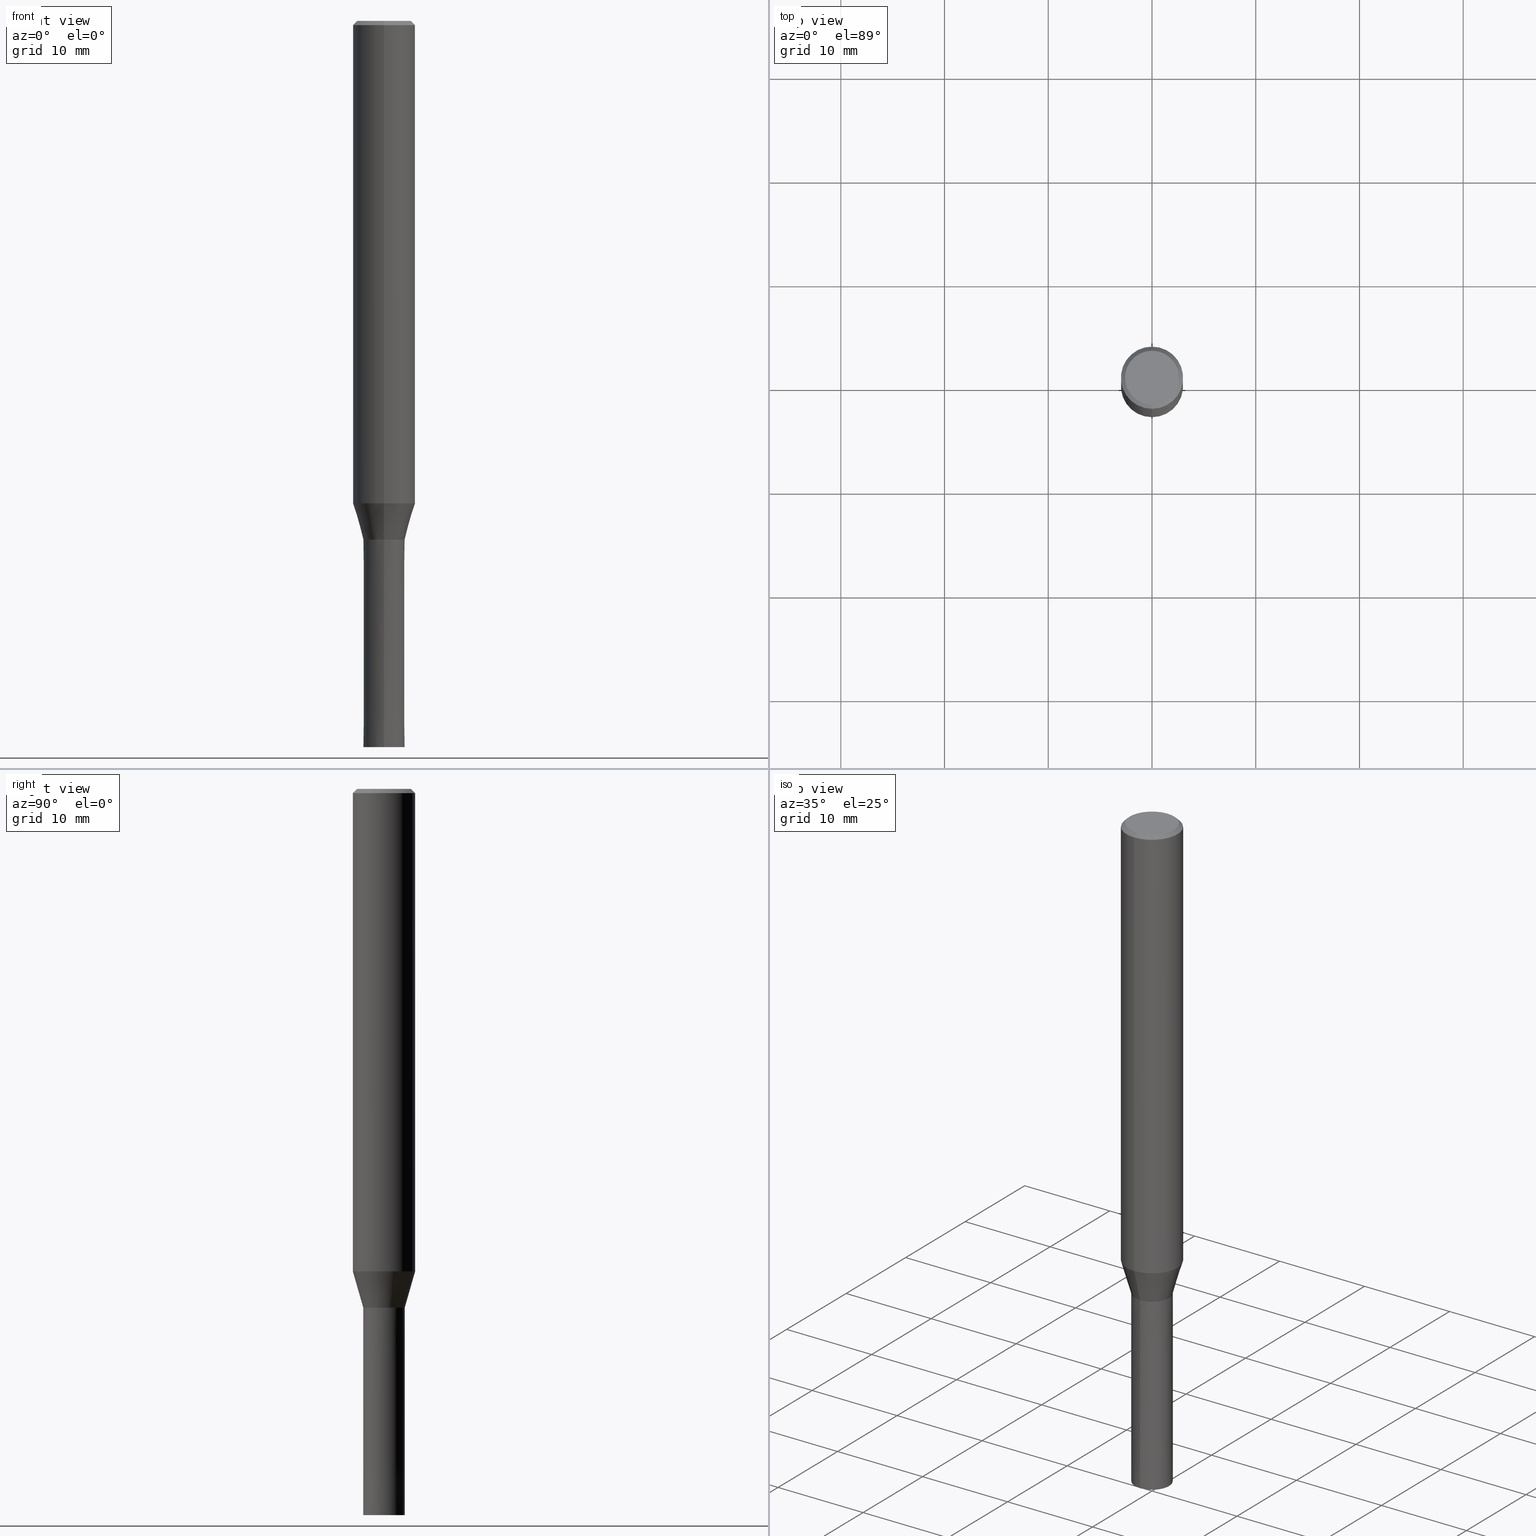
[diagram: canonical four-view strip — front | top / right | iso, engineering-drawing reading convention]
A machine part, canonical four-view strip (front | top / right | iso — engineering-drawing reading convention). The complete STEP part file that produces these views, byte-faithful:
ISO-10303-21;
HEADER;
FILE_DESCRIPTION(('no description'),'unknown implementation level');
FILE_NAME('HMS4040-2000-Huellk.stp','  ',('CIMSOURCE GmbH'),('CADClick - KiM GmbH - www.kimweb.de'),'unknown preprocess','ACIS','unknown authorization');
FILE_SCHEMA(('automotive_design'));
ENDSEC;
DATA;
#1=MECHANICAL_DESIGN_GEOMETRIC_PRESENTATION_REPRESENTATION(' ',(#14,#15,#16,#17,#18,#19,#20,#21,#22,#23,#24,#25,#26,#27,#28,#29,#30,#31,#32,#33,#34,#35,#36,#37,#38,#39,#40,#41,#42,#43,#44,#45,#46,#47,#48,#49,#50,#51,#52,#53,#54,#55,#56,#57,#58,#59,#60,#61,#62,#63,#64),#10);
#2=PRODUCT_DEFINITION_CONTEXT('',#65,'design');
#3=APPLICATION_PROTOCOL_DEFINITION('INTERNATIONAL STANDARD','automotive_design',1994,#65);
#4=PRODUCT_CATEGORY_RELATIONSHIP('NONE','NONE',#66,#67);
#5=SHAPE_DEFINITION_REPRESENTATION(#68,#69);
#6=PRODUCT_DEFINITION_CONTEXT('',#70,'design');
#7=APPLICATION_PROTOCOL_DEFINITION('INTERNATIONAL STANDARD','automotive_design',1994,#70);
#8=PRODUCT_CATEGORY_RELATIONSHIP('NONE','NONE',#71,#72);
#9=SHAPE_DEFINITION_REPRESENTATION(#73,#74);
#10= (GEOMETRIC_REPRESENTATION_CONTEXT(3)GLOBAL_UNCERTAINTY_ASSIGNED_CONTEXT((#77))GLOBAL_UNIT_ASSIGNED_CONTEXT((#79,#80,#81))REPRESENTATION_CONTEXT('NONE','WORKSPACE'));
#14=STYLED_ITEM('',(#83),#84);
#15=STYLED_ITEM('',(#85),#86);
#16=STYLED_ITEM('',(#87),#88);
#17=STYLED_ITEM('',(#89),#90);
#18=STYLED_ITEM('',(#91),#92);
#19=STYLED_ITEM('',(#93),#94);
#20=STYLED_ITEM('',(#95),#96);
#21=STYLED_ITEM('',(#97),#98);
#22=STYLED_ITEM('',(#99),#100);
#23=STYLED_ITEM('',(#101),#102);
#24=STYLED_ITEM('',(#103),#104);
#25=STYLED_ITEM('',(#105),#106);
#26=STYLED_ITEM('',(#107),#108);
#27=STYLED_ITEM('',(#109),#110);
#28=STYLED_ITEM('',(#111),#112);
#29=STYLED_ITEM('',(#113),#114);
#30=STYLED_ITEM('',(#115),#116);
#31=STYLED_ITEM('',(#117),#118);
#32=STYLED_ITEM('',(#119),#120);
#33=STYLED_ITEM('',(#121),#122);
#34=STYLED_ITEM('',(#123),#124);
#35=STYLED_ITEM('',(#125),#126);
#36=STYLED_ITEM('',(#127),#128);
#37=STYLED_ITEM('',(#129),#130);
#38=STYLED_ITEM('',(#131),#132);
#39=STYLED_ITEM('',(#133),#134);
#40=STYLED_ITEM('',(#135),#136);
#41=STYLED_ITEM('',(#137),#138);
#42=STYLED_ITEM('',(#139),#140);
#43=STYLED_ITEM('',(#141),#142);
#44=STYLED_ITEM('',(#143),#144);
#45=STYLED_ITEM('',(#145),#146);
#46=STYLED_ITEM('',(#147),#148);
#47=STYLED_ITEM('',(#149),#150);
#48=STYLED_ITEM('',(#151),#152);
#49=STYLED_ITEM('',(#153),#154);
#50=STYLED_ITEM('',(#155),#156);
#51=STYLED_ITEM('',(#157),#158);
#52=STYLED_ITEM('',(#159),#160);
#53=STYLED_ITEM('',(#161),#162);
#54=STYLED_ITEM('',(#163),#164);
#55=STYLED_ITEM('',(#165),#166);
#56=STYLED_ITEM('',(#167),#168);
#57=STYLED_ITEM('',(#169),#170);
#58=STYLED_ITEM('',(#171),#172);
#59=STYLED_ITEM('',(#173),#174);
#60=STYLED_ITEM('',(#175),#176);
#61=STYLED_ITEM('',(#177),#178);
#62=STYLED_ITEM('',(#179),#180);
#63=STYLED_ITEM('',(#181),#182);
#64=STYLED_ITEM('',(#183),#184);
#65=APPLICATION_CONTEXT(' ');
#66=PRODUCT_CATEGORY('part','NONE');
#67=PRODUCT_RELATED_PRODUCT_CATEGORY('detail',' ',(#185));
#68=PRODUCT_DEFINITION_SHAPE('NONE','NONE',#186);
#69=ADVANCED_BREP_SHAPE_REPRESENTATION('1',(#156,#187),#10);
#70=APPLICATION_CONTEXT(' ');
#71=PRODUCT_CATEGORY('part','NONE');
#72=PRODUCT_RELATED_PRODUCT_CATEGORY('detail',' ',(#188));
#73=PRODUCT_DEFINITION_SHAPE('NONE','NONE',#189);
#74=ADVANCED_BREP_SHAPE_REPRESENTATION('2',(#172,#190),#10);
#77=UNCERTAINTY_MEASURE_WITH_UNIT(LENGTH_MEASURE(1.0E-006),#79,'','');
#79= (CONVERSION_BASED_UNIT('MILLIMETRE',#193)LENGTH_UNIT()NAMED_UNIT(#196));
#80= (NAMED_UNIT(#198)PLANE_ANGLE_UNIT()SI_UNIT($,.RADIAN.));
#81= (NAMED_UNIT(#198)SOLID_ANGLE_UNIT()SI_UNIT($,.STERADIAN.));
#83=PRESENTATION_STYLE_ASSIGNMENT((#204));
#84=ADVANCED_FACE('',(#205),#206,.T.);
#85=PRESENTATION_STYLE_ASSIGNMENT((#207));
#86=ADVANCED_FACE('',(#208),#209,.T.);
#87=PRESENTATION_STYLE_ASSIGNMENT((#210));
#88=EDGE_CURVE('',#154,#138,#211,.T.);
#89=PRESENTATION_STYLE_ASSIGNMENT((#212));
#90=EDGE_CURVE('',#134,#164,#213,.T.);
#91=PRESENTATION_STYLE_ASSIGNMENT((#214));
#92=EDGE_CURVE('',#180,#148,#215,.T.);
#93=PRESENTATION_STYLE_ASSIGNMENT((#216));
#94=VERTEX_POINT('',#217);
#95=PRESENTATION_STYLE_ASSIGNMENT((#218));
#96=EDGE_CURVE('',#170,#180,#219,.T.);
#97=PRESENTATION_STYLE_ASSIGNMENT((#220));
#98=ADVANCED_FACE('',(#221),#222,.T.);
#99=PRESENTATION_STYLE_ASSIGNMENT((#223));
#100=EDGE_CURVE('',#134,#94,#224,.T.);
#101=PRESENTATION_STYLE_ASSIGNMENT((#225));
#102=ADVANCED_FACE('',(#226),#227,.T.);
#103=PRESENTATION_STYLE_ASSIGNMENT((#228));
#104=VERTEX_POINT('',#229);
#105=PRESENTATION_STYLE_ASSIGNMENT((#230));
#106=EDGE_CURVE('',#160,#148,#231,.T.);
#107=PRESENTATION_STYLE_ASSIGNMENT((#232));
#108=EDGE_CURVE('',#152,#176,#233,.T.);
#109=PRESENTATION_STYLE_ASSIGNMENT((#234));
#110=EDGE_CURVE('',#176,#104,#235,.T.);
#111=PRESENTATION_STYLE_ASSIGNMENT((#236));
#112=EDGE_CURVE('',#152,#128,#237,.T.);
#113=PRESENTATION_STYLE_ASSIGNMENT((#238));
#114=ADVANCED_FACE('',(#239),#240,.T.);
#115=PRESENTATION_STYLE_ASSIGNMENT((#241));
#116=EDGE_CURVE('',#138,#160,#242,.T.);
#117=PRESENTATION_STYLE_ASSIGNMENT((#243));
#118=ADVANCED_FACE('',(#244),#245,.T.);
#119=PRESENTATION_STYLE_ASSIGNMENT((#246));
#120=EDGE_CURVE('',#148,#160,#247,.T.);
#121=PRESENTATION_STYLE_ASSIGNMENT((#248));
#122=EDGE_CURVE('',#128,#152,#249,.T.);
#123=PRESENTATION_STYLE_ASSIGNMENT((#250));
#124=ADVANCED_FACE('',(#251),#252,.T.);
#125=PRESENTATION_STYLE_ASSIGNMENT((#253));
#126=ADVANCED_FACE('',(#254),#255,.T.);
#127=PRESENTATION_STYLE_ASSIGNMENT((#256));
#128=VERTEX_POINT('',#257);
#129=PRESENTATION_STYLE_ASSIGNMENT((#258));
#130=EDGE_CURVE('',#138,#154,#259,.T.);
#131=PRESENTATION_STYLE_ASSIGNMENT((#260));
#132=ADVANCED_FACE('',(#261),#262,.T.);
#133=PRESENTATION_STYLE_ASSIGNMENT((#263));
#134=VERTEX_POINT('',#264);
#135=PRESENTATION_STYLE_ASSIGNMENT((#265));
#136=EDGE_CURVE('',#94,#134,#266,.T.);
#137=PRESENTATION_STYLE_ASSIGNMENT((#267));
#138=VERTEX_POINT('',#268);
#139=PRESENTATION_STYLE_ASSIGNMENT((#269));
#140=EDGE_CURVE('',#148,#154,#270,.T.);
#141=PRESENTATION_STYLE_ASSIGNMENT((#271));
#142=ADVANCED_FACE('',(#272),#273,.T.);
#143=PRESENTATION_STYLE_ASSIGNMENT((#274));
#144=ADVANCED_FACE('',(#275),#276,.T.);
#145=PRESENTATION_STYLE_ASSIGNMENT((#277));
#146=EDGE_CURVE('',#160,#170,#278,.T.);
#147=PRESENTATION_STYLE_ASSIGNMENT((#279));
#148=VERTEX_POINT('',#280);
#149=PRESENTATION_STYLE_ASSIGNMENT((#281));
#150=ADVANCED_FACE('',(#282),#283,.T.);
#151=PRESENTATION_STYLE_ASSIGNMENT((#284));
#152=VERTEX_POINT('',#285);
#153=PRESENTATION_STYLE_ASSIGNMENT((#286));
#154=VERTEX_POINT('',#287);
#155=PRESENTATION_STYLE_ASSIGNMENT((#288));
#156=MANIFOLD_SOLID_BREP('1',#289);
#157=PRESENTATION_STYLE_ASSIGNMENT((#290));
#158=EDGE_CURVE('',#180,#170,#291,.T.);
#159=PRESENTATION_STYLE_ASSIGNMENT((#292));
#160=VERTEX_POINT('',#293);
#161=PRESENTATION_STYLE_ASSIGNMENT((#294));
#162=VERTEX_POINT('',#295);
#163=PRESENTATION_STYLE_ASSIGNMENT((#296));
#164=VERTEX_POINT('',#297);
#165=PRESENTATION_STYLE_ASSIGNMENT((#298));
#166=EDGE_CURVE('',#162,#164,#299,.T.);
#167=PRESENTATION_STYLE_ASSIGNMENT((#300));
#168=EDGE_CURVE('',#164,#162,#301,.T.);
#169=PRESENTATION_STYLE_ASSIGNMENT((#302));
#170=VERTEX_POINT('',#303);
#171=PRESENTATION_STYLE_ASSIGNMENT((#304));
#172=MANIFOLD_SOLID_BREP('2',#305);
#173=PRESENTATION_STYLE_ASSIGNMENT((#306));
#174=EDGE_CURVE('',#104,#128,#307,.T.);
#175=PRESENTATION_STYLE_ASSIGNMENT((#308));
#176=VERTEX_POINT('',#309);
#177=PRESENTATION_STYLE_ASSIGNMENT((#310));
#178=EDGE_CURVE('',#104,#176,#311,.T.);
#179=PRESENTATION_STYLE_ASSIGNMENT((#312));
#180=VERTEX_POINT('',#313);
#181=PRESENTATION_STYLE_ASSIGNMENT((#314));
#182=ADVANCED_FACE('',(#315,#316),#317,.T.);
#183=PRESENTATION_STYLE_ASSIGNMENT((#318));
#184=EDGE_CURVE('',#162,#94,#319,.T.);
#185=PRODUCT('1','1','PART-1-DESC',(#320));
#186=PRODUCT_DEFINITION('NONE','NONE',#321,#2);
#187=AXIS2_PLACEMENT_3D('',#322,#323,#324);
#188=PRODUCT('2','2','PART-2-DESC',(#325));
#189=PRODUCT_DEFINITION('NONE','NONE',#326,#6);
#190=AXIS2_PLACEMENT_3D('',#327,#328,#329);
#193=LENGTH_MEASURE_WITH_UNIT(LENGTH_MEASURE(1.0),#330);
#196=DIMENSIONAL_EXPONENTS(1.0,0.0,0.0,0.0,0.0,0.0,0.0);
#198=DIMENSIONAL_EXPONENTS(0.0,0.0,0.0,0.0,0.0,0.0,0.0);
#204=SURFACE_STYLE_USAGE(.BOTH.,#331);
#205=FACE_OUTER_BOUND('',#332,.T.);
#206=PLANE('',#333);
#207=SURFACE_STYLE_USAGE(.BOTH.,#334);
#208=FACE_OUTER_BOUND('',#335,.T.);
#209=CYLINDRICAL_SURFACE('',#336,3.0);
#210=CURVE_STYLE('',#337,POSITIVE_LENGTH_MEASURE(1.0E-006),#338);
#211=CIRCLE('',#339,2.6);
#212=CURVE_STYLE('',#340,POSITIVE_LENGTH_MEASURE(1.0E-006),#341);
#213=LINE('',#342,#343);
#214=CURVE_STYLE('',#344,POSITIVE_LENGTH_MEASURE(1.0E-006),#345);
#215=LINE('',#346,#347);
#216=POINT_STYLE(' ',#348,POSITIVE_LENGTH_MEASURE(1.0E-006),#349);
#217=CARTESIAN_POINT('',(0.0,2.0,-70.0));
#218=CURVE_STYLE('',#350,POSITIVE_LENGTH_MEASURE(1.0E-006),#351);
#219=CIRCLE('',#352,3.0);
#220=SURFACE_STYLE_USAGE(.BOTH.,#353);
#221=FACE_OUTER_BOUND('',#354,.T.);
#222=PLANE('',#355);
#223=CURVE_STYLE('',#356,POSITIVE_LENGTH_MEASURE(1.0E-006),#357);
#224=CIRCLE('',#358,2.0);
#225=SURFACE_STYLE_USAGE(.BOTH.,#359);
#226=FACE_OUTER_BOUND('',#360,.T.);
#227=CONICAL_SURFACE('',#361,2.8,0.78539816339745);
#228=POINT_STYLE(' ',#362,POSITIVE_LENGTH_MEASURE(1.0E-006),#363);
#229=CARTESIAN_POINT('',(0.0,2.99995,-46.513));
#230=CURVE_STYLE('',#364,POSITIVE_LENGTH_MEASURE(1.0E-006),#365);
#231=CIRCLE('',#366,3.0);
#232=CURVE_STYLE('',#367,POSITIVE_LENGTH_MEASURE(1.0E-006),#368);
#233=LINE('',#369,#370);
#234=CURVE_STYLE('',#371,POSITIVE_LENGTH_MEASURE(1.0E-006),#372);
#235=CIRCLE('',#373,2.99995);
#236=CURVE_STYLE('',#374,POSITIVE_LENGTH_MEASURE(1.0E-006),#375);
#237=CIRCLE('',#376,1.99995);
#238=SURFACE_STYLE_USAGE(.BOTH.,#377);
#239=FACE_OUTER_BOUND('',#378,.T.);
#240=PLANE('',#379);
#241=CURVE_STYLE('',#380,POSITIVE_LENGTH_MEASURE(1.0E-006),#381);
#242=LINE('',#382,#383);
#243=SURFACE_STYLE_USAGE(.BOTH.,#384);
#244=FACE_OUTER_BOUND('',#385,.T.);
#245=CONICAL_SURFACE('',#386,2.49995,0.279284171542493);
#246=CURVE_STYLE('',#387,POSITIVE_LENGTH_MEASURE(1.0E-006),#388);
#247=CIRCLE('',#389,3.0);
#248=CURVE_STYLE('',#390,POSITIVE_LENGTH_MEASURE(1.0E-006),#391);
#249=CIRCLE('',#392,1.99995);
#250=SURFACE_STYLE_USAGE(.BOTH.,#393);
#251=FACE_OUTER_BOUND('',#394,.T.);
#252=CONICAL_SURFACE('',#395,2.8,0.78539816339745);
#253=SURFACE_STYLE_USAGE(.BOTH.,#396);
#254=FACE_OUTER_BOUND('',#397,.T.);
#255=PLANE('',#398);
#256=POINT_STYLE(' ',#399,POSITIVE_LENGTH_MEASURE(1.0E-006),#400);
#257=CARTESIAN_POINT('',(0.0,1.99995,-50.0));
#258=CURVE_STYLE('',#401,POSITIVE_LENGTH_MEASURE(1.0E-006),#402);
#259=CIRCLE('',#403,2.6);
#260=SURFACE_STYLE_USAGE(.BOTH.,#404);
#261=FACE_OUTER_BOUND('',#405,.T.);
#262=CONICAL_SURFACE('',#406,1.99995,4.99999999995778E-006);
#263=POINT_STYLE(' ',#407,POSITIVE_LENGTH_MEASURE(1.0E-006),#408);
#264=CARTESIAN_POINT('',(2.44921270764475E-016,-2.0,-70.0));
#265=CURVE_STYLE('',#409,POSITIVE_LENGTH_MEASURE(1.0E-006),#410);
#266=CIRCLE('',#411,2.0);
#267=POINT_STYLE(' ',#412,POSITIVE_LENGTH_MEASURE(1.0E-006),#413);
#268=CARTESIAN_POINT('',(0.0,2.6,0.0));
#269=CURVE_STYLE('',#414,POSITIVE_LENGTH_MEASURE(1.0E-006),#415);
#270=LINE('',#416,#417);
#271=SURFACE_STYLE_USAGE(.BOTH.,#418);
#272=FACE_OUTER_BOUND('',#419,.T.);
#273=CONICAL_SURFACE('',#420,1.99995,4.99999999995778E-006);
#274=SURFACE_STYLE_USAGE(.BOTH.,#421);
#275=FACE_OUTER_BOUND('',#422,.T.);
#276=CYLINDRICAL_SURFACE('',#423,3.0);
#277=CURVE_STYLE('',#424,POSITIVE_LENGTH_MEASURE(1.0E-006),#425);
#278=LINE('',#426,#427);
#279=POINT_STYLE(' ',#428,POSITIVE_LENGTH_MEASURE(1.0E-006),#429);
#280=CARTESIAN_POINT('',(3.67381906146713E-016,-3.0,-0.399999999999999));
#281=SURFACE_STYLE_USAGE(.BOTH.,#430);
#282=FACE_OUTER_BOUND('',#431,.T.);
#283=CONICAL_SURFACE('',#432,2.49995,0.279284171542493);
#284=POINT_STYLE(' ',#433,POSITIVE_LENGTH_MEASURE(1.0E-006),#434);
#285=CARTESIAN_POINT('',(2.44915147732706E-016,-1.99995,-50.0));
#286=POINT_STYLE(' ',#435,POSITIVE_LENGTH_MEASURE(1.0E-006),#436);
#287=CARTESIAN_POINT('',(3.18397651993818E-016,-2.6,0.0));
#288=SURFACE_STYLE_USAGE(.BOTH.,#437);
#289=CLOSED_SHELL('',(#150,#144,#102,#182,#84,#124,#86,#118,#126));
#290=CURVE_STYLE('',#438,POSITIVE_LENGTH_MEASURE(1.0E-006),#439);
#291=CIRCLE('',#440,3.0);
#292=POINT_STYLE(' ',#441,POSITIVE_LENGTH_MEASURE(1.0E-006),#442);
#293=CARTESIAN_POINT('',(0.0,3.0,-0.399999999999999));
#294=POINT_STYLE(' ',#443,POSITIVE_LENGTH_MEASURE(1.0E-006),#444);
#295=CARTESIAN_POINT('',(0.0,1.9999,-50.0));
#296=POINT_STYLE(' ',#445,POSITIVE_LENGTH_MEASURE(1.0E-006),#446);
#297=CARTESIAN_POINT('',(2.44909024700937E-016,-1.9999,-50.0));
#298=CURVE_STYLE('',#447,POSITIVE_LENGTH_MEASURE(1.0E-006),#448);
#299=CIRCLE('',#449,1.9999);
#300=CURVE_STYLE('',#450,POSITIVE_LENGTH_MEASURE(1.0E-006),#451);
#301=CIRCLE('',#452,1.9999);
#302=POINT_STYLE(' ',#453,POSITIVE_LENGTH_MEASURE(1.0E-006),#454);
#303=CARTESIAN_POINT('',(0.0,3.0,-46.513));
#304=SURFACE_STYLE_USAGE(.BOTH.,#455);
#305=CLOSED_SHELL('',(#132,#98,#142,#114));
#306=CURVE_STYLE('',#456,POSITIVE_LENGTH_MEASURE(1.0E-006),#457);
#307=LINE('',#458,#459);
#308=POINT_STYLE(' ',#460,POSITIVE_LENGTH_MEASURE(1.0E-006),#461);
#309=CARTESIAN_POINT('',(3.67375783114944E-016,-2.99995,-46.513));
#310=CURVE_STYLE('',#462,POSITIVE_LENGTH_MEASURE(1.0E-006),#463);
#311=CIRCLE('',#464,2.99995);
#312=POINT_STYLE(' ',#465,POSITIVE_LENGTH_MEASURE(1.0E-006),#466);
#313=CARTESIAN_POINT('',(3.67381906146713E-016,-3.0,-46.513));
#314=SURFACE_STYLE_USAGE(.BOTH.,#467);
#315=FACE_OUTER_BOUND('',#468,.T.);
#316=FACE_BOUND('',#469,.T.);
#317=PLANE('',#470);
#318=CURVE_STYLE('',#471,POSITIVE_LENGTH_MEASURE(1.0E-006),#472);
#319=LINE('',#473,#474);
#320=PRODUCT_CONTEXT('',#65,'mechanical');
#321=PRODUCT_DEFINITION_FORMATION_WITH_SPECIFIED_SOURCE(' ','NONE',#185,.NOT_KNOWN.);
#322=CARTESIAN_POINT('',(0.0,0.0,0.0));
#323=DIRECTION('',(0.0,0.0,1.0));
#324=DIRECTION('',(1.0,0.0,0.0));
#325=PRODUCT_CONTEXT('',#70,'mechanical');
#326=PRODUCT_DEFINITION_FORMATION_WITH_SPECIFIED_SOURCE(' ','NONE',#188,.NOT_KNOWN.);
#327=CARTESIAN_POINT('',(0.0,0.0,0.0));
#328=DIRECTION('',(0.0,0.0,1.0));
#329=DIRECTION('',(1.0,0.0,0.0));
#330= (NAMED_UNIT(#196)LENGTH_UNIT()SI_UNIT(.MILLI.,.METRE.));
#331=SURFACE_SIDE_STYLE('',(#476));
#332=EDGE_LOOP('',(#477,#478));
#333=AXIS2_PLACEMENT_3D('',#479,#480,#481);
#334=SURFACE_SIDE_STYLE('',(#482));
#335=EDGE_LOOP('',(#483,#484,#485,#486));
#336=AXIS2_PLACEMENT_3D('',#487,#488,#489);
#337=DRAUGHTING_PRE_DEFINED_CURVE_FONT('continuous');
#338=COLOUR_RGB('',0.498039215803146,0.498039215803146,0.498039215803146);
#339=AXIS2_PLACEMENT_3D('',#490,#491,#492);
#340=DRAUGHTING_PRE_DEFINED_CURVE_FONT('continuous');
#341=COLOUR_RGB('',0.800000011920929,0.800000011920929,0.800000011920929);
#342=CARTESIAN_POINT('',(2.44915147732706E-016,-1.99995,-60.0));
#343=VECTOR('',#493,1.0);
#344=DRAUGHTING_PRE_DEFINED_CURVE_FONT('continuous');
#345=COLOUR_RGB('',0.498039215803146,0.498039215803146,0.498039215803146);
#346=CARTESIAN_POINT('',(3.67381906146713E-016,-3.0,-23.4565));
#347=VECTOR('',#494,1.0);
#348=PRE_DEFINED_MARKER('');
#349=COLOUR_RGB('',0.800000011920929,0.800000011920929,0.800000011920929);
#350=DRAUGHTING_PRE_DEFINED_CURVE_FONT('continuous');
#351=COLOUR_RGB('',0.498039215803146,0.498039215803146,0.498039215803146);
#352=AXIS2_PLACEMENT_3D('',#495,#496,#497);
#353=SURFACE_SIDE_STYLE('',(#498));
#354=EDGE_LOOP('',(#499,#500));
#355=AXIS2_PLACEMENT_3D('',#501,#502,#503);
#356=DRAUGHTING_PRE_DEFINED_CURVE_FONT('continuous');
#357=COLOUR_RGB('',0.800000011920929,0.800000011920929,0.800000011920929);
#358=AXIS2_PLACEMENT_3D('',#504,#505,#506);
#359=SURFACE_SIDE_STYLE('',(#507));
#360=EDGE_LOOP('',(#508,#509,#510,#511));
#361=AXIS2_PLACEMENT_3D('',#512,#513,#514);
#362=PRE_DEFINED_MARKER('');
#363=COLOUR_RGB('',0.498039215803146,0.498039215803146,0.498039215803146);
#364=DRAUGHTING_PRE_DEFINED_CURVE_FONT('continuous');
#365=COLOUR_RGB('',0.498039215803146,0.498039215803146,0.498039215803146);
#366=AXIS2_PLACEMENT_3D('',#515,#516,#517);
#367=DRAUGHTING_PRE_DEFINED_CURVE_FONT('continuous');
#368=COLOUR_RGB('',0.498039215803146,0.498039215803146,0.498039215803146);
#369=CARTESIAN_POINT('',(3.06145465423825E-016,-2.49995,-48.2565));
#370=VECTOR('',#518,1.0);
#371=DRAUGHTING_PRE_DEFINED_CURVE_FONT('continuous');
#372=COLOUR_RGB('',0.498039215803146,0.498039215803146,0.498039215803146);
#373=AXIS2_PLACEMENT_3D('',#519,#520,#521);
#374=DRAUGHTING_PRE_DEFINED_CURVE_FONT('continuous');
#375=COLOUR_RGB('',0.498039215803146,0.498039215803146,0.498039215803146);
#376=AXIS2_PLACEMENT_3D('',#522,#523,#524);
#377=SURFACE_SIDE_STYLE('',(#525));
#378=EDGE_LOOP('',(#526,#527));
#379=AXIS2_PLACEMENT_3D('',#528,#529,#530);
#380=DRAUGHTING_PRE_DEFINED_CURVE_FONT('continuous');
#381=COLOUR_RGB('',0.498039215803146,0.498039215803146,0.498039215803146);
#382=CARTESIAN_POINT('',(-3.42889779070266E-016,2.8,-0.200000000000003));
#383=VECTOR('',#531,1.0);
#384=SURFACE_SIDE_STYLE('',(#532));
#385=EDGE_LOOP('',(#533,#534,#535,#536));
#386=AXIS2_PLACEMENT_3D('',#537,#538,#539);
#387=DRAUGHTING_PRE_DEFINED_CURVE_FONT('continuous');
#388=COLOUR_RGB('',0.498039215803146,0.498039215803146,0.498039215803146);
#389=AXIS2_PLACEMENT_3D('',#540,#541,#542);
#390=DRAUGHTING_PRE_DEFINED_CURVE_FONT('continuous');
#391=COLOUR_RGB('',0.498039215803146,0.498039215803146,0.498039215803146);
#392=AXIS2_PLACEMENT_3D('',#543,#544,#545);
#393=SURFACE_SIDE_STYLE('',(#546));
#394=EDGE_LOOP('',(#547,#548,#549,#550));
#395=AXIS2_PLACEMENT_3D('',#551,#552,#553);
#396=SURFACE_SIDE_STYLE('',(#554));
#397=EDGE_LOOP('',(#555,#556));
#398=AXIS2_PLACEMENT_3D('',#557,#558,#559);
#399=PRE_DEFINED_MARKER('');
#400=COLOUR_RGB('',0.498039215803146,0.498039215803146,0.498039215803146);
#401=DRAUGHTING_PRE_DEFINED_CURVE_FONT('continuous');
#402=COLOUR_RGB('',0.498039215803146,0.498039215803146,0.498039215803146);
#403=AXIS2_PLACEMENT_3D('',#560,#561,#562);
#404=SURFACE_SIDE_STYLE('',(#563));
#405=EDGE_LOOP('',(#564,#565,#566,#567));
#406=AXIS2_PLACEMENT_3D('',#568,#569,#570);
#407=PRE_DEFINED_MARKER('');
#408=COLOUR_RGB('',0.800000011920929,0.800000011920929,0.800000011920929);
#409=DRAUGHTING_PRE_DEFINED_CURVE_FONT('continuous');
#410=COLOUR_RGB('',0.800000011920929,0.800000011920929,0.800000011920929);
#411=AXIS2_PLACEMENT_3D('',#571,#572,#573);
#412=PRE_DEFINED_MARKER('');
#413=COLOUR_RGB('',0.498039215803146,0.498039215803146,0.498039215803146);
#414=DRAUGHTING_PRE_DEFINED_CURVE_FONT('continuous');
#415=COLOUR_RGB('',0.498039215803146,0.498039215803146,0.498039215803146);
#416=CARTESIAN_POINT('',(3.42889779070266E-016,-2.8,-0.200000000000003));
#417=VECTOR('',#574,1.0);
#418=SURFACE_SIDE_STYLE('',(#575));
#419=EDGE_LOOP('',(#576,#577,#578,#579));
#420=AXIS2_PLACEMENT_3D('',#580,#581,#582);
#421=SURFACE_SIDE_STYLE('',(#583));
#422=EDGE_LOOP('',(#584,#585,#586,#587));
#423=AXIS2_PLACEMENT_3D('',#588,#589,#590);
#424=DRAUGHTING_PRE_DEFINED_CURVE_FONT('continuous');
#425=COLOUR_RGB('',0.498039215803146,0.498039215803146,0.498039215803146);
#426=CARTESIAN_POINT('',(-3.67381906146713E-016,3.0,-23.4565));
#427=VECTOR('',#591,1.0);
#428=PRE_DEFINED_MARKER('');
#429=COLOUR_RGB('',0.498039215803146,0.498039215803146,0.498039215803146);
#430=SURFACE_SIDE_STYLE('',(#592));
#431=EDGE_LOOP('',(#593,#594,#595,#596));
#432=AXIS2_PLACEMENT_3D('',#597,#598,#599);
#433=PRE_DEFINED_MARKER('');
#434=COLOUR_RGB('',0.498039215803146,0.498039215803146,0.498039215803146);
#435=PRE_DEFINED_MARKER('');
#436=COLOUR_RGB('',0.498039215803146,0.498039215803146,0.498039215803146);
#437=SURFACE_SIDE_STYLE('',(#600));
#438=DRAUGHTING_PRE_DEFINED_CURVE_FONT('continuous');
#439=COLOUR_RGB('',0.498039215803146,0.498039215803146,0.498039215803146);
#440=AXIS2_PLACEMENT_3D('',#601,#602,#603);
#441=PRE_DEFINED_MARKER('');
#442=COLOUR_RGB('',0.498039215803146,0.498039215803146,0.498039215803146);
#443=PRE_DEFINED_MARKER('');
#444=COLOUR_RGB('',0.800000011920929,0.800000011920929,0.800000011920929);
#445=PRE_DEFINED_MARKER('');
#446=COLOUR_RGB('',0.800000011920929,0.800000011920929,0.800000011920929);
#447=DRAUGHTING_PRE_DEFINED_CURVE_FONT('continuous');
#448=COLOUR_RGB('',0.800000011920929,0.800000011920929,0.800000011920929);
#449=AXIS2_PLACEMENT_3D('',#604,#605,#606);
#450=DRAUGHTING_PRE_DEFINED_CURVE_FONT('continuous');
#451=COLOUR_RGB('',0.800000011920929,0.800000011920929,0.800000011920929);
#452=AXIS2_PLACEMENT_3D('',#607,#608,#609);
#453=PRE_DEFINED_MARKER('');
#454=COLOUR_RGB('',0.498039215803146,0.498039215803146,0.498039215803146);
#455=SURFACE_SIDE_STYLE('',(#610));
#456=DRAUGHTING_PRE_DEFINED_CURVE_FONT('continuous');
#457=COLOUR_RGB('',0.498039215803146,0.498039215803146,0.498039215803146);
#458=CARTESIAN_POINT('',(-3.06145465423825E-016,2.49995,-48.2565));
#459=VECTOR('',#611,1.0);
#460=PRE_DEFINED_MARKER('');
#461=COLOUR_RGB('',0.498039215803146,0.498039215803146,0.498039215803146);
#462=DRAUGHTING_PRE_DEFINED_CURVE_FONT('continuous');
#463=COLOUR_RGB('',0.498039215803146,0.498039215803146,0.498039215803146);
#464=AXIS2_PLACEMENT_3D('',#612,#613,#614);
#465=PRE_DEFINED_MARKER('');
#466=COLOUR_RGB('',0.498039215803146,0.498039215803146,0.498039215803146);
#467=SURFACE_SIDE_STYLE('',(#615));
#468=EDGE_LOOP('',(#616,#617));
#469=EDGE_LOOP('',(#618,#619));
#470=AXIS2_PLACEMENT_3D('',#620,#621,#622);
#471=DRAUGHTING_PRE_DEFINED_CURVE_FONT('continuous');
#472=COLOUR_RGB('',0.800000011920929,0.800000011920929,0.800000011920929);
#473=CARTESIAN_POINT('',(-2.44915147732706E-016,1.99995,-60.0));
#474=VECTOR('',#623,1.0);
#476=SURFACE_STYLE_FILL_AREA(#624);
#477=ORIENTED_EDGE('',*,*,#130,.F.);
#478=ORIENTED_EDGE('',*,*,#88,.F.);
#479=CARTESIAN_POINT('',(0.0,1.3,0.0));
#480=DIRECTION('',(-0.0,0.0,1.0));
#481=DIRECTION('',(0.0,-1.0,0.0));
#482=SURFACE_STYLE_FILL_AREA(#625);
#483=ORIENTED_EDGE('',*,*,#146,.T.);
#484=ORIENTED_EDGE('',*,*,#158,.F.);
#485=ORIENTED_EDGE('',*,*,#92,.T.);
#486=ORIENTED_EDGE('',*,*,#120,.T.);
#487=CARTESIAN_POINT('',(0.0,0.0,-23.4565));
#488=DIRECTION('',(-0.0,-0.0,1.0));
#489=DIRECTION('',(0.0,1.0,0.0));
#490=CARTESIAN_POINT('',(0.0,0.0,0.0));
#491=DIRECTION('',(0.0,0.0,-1.0));
#492=DIRECTION('',(0.0,1.0,0.0));
#493=DIRECTION('',(-6.12303176903467E-022,4.99999999993695E-006,0.9999999999875));
#494=DIRECTION('',(-0.0,-0.0,1.0));
#495=CARTESIAN_POINT('',(0.0,0.0,-46.513));
#496=DIRECTION('',(0.0,0.0,-1.0));
#497=DIRECTION('',(0.0,1.0,0.0));
#498=SURFACE_STYLE_FILL_AREA(#626);
#499=ORIENTED_EDGE('',*,*,#166,.F.);
#500=ORIENTED_EDGE('',*,*,#168,.F.);
#501=CARTESIAN_POINT('',(0.0,0.99995,-50.0));
#502=DIRECTION('',(-0.0,0.0,1.0));
#503=DIRECTION('',(0.0,-1.0,0.0));
#504=CARTESIAN_POINT('',(0.0,0.0,-70.0));
#505=DIRECTION('',(0.0,0.0,-1.0));
#506=DIRECTION('',(0.0,1.0,0.0));
#507=SURFACE_STYLE_FILL_AREA(#627);
#508=ORIENTED_EDGE('',*,*,#116,.F.);
#509=ORIENTED_EDGE('',*,*,#130,.T.);
#510=ORIENTED_EDGE('',*,*,#140,.F.);
#511=ORIENTED_EDGE('',*,*,#106,.F.);
#512=CARTESIAN_POINT('',(0.0,0.0,-0.200000000000003));
#513=DIRECTION('',(0.0,-0.0,-1.0));
#514=DIRECTION('',(0.0,1.0,0.0));
#515=CARTESIAN_POINT('',(0.0,0.0,-0.399999999999999));
#516=DIRECTION('',(0.0,0.0,-1.0));
#517=DIRECTION('',(0.0,1.0,0.0));
#518=DIRECTION('',(3.3758432755158E-017,-0.275667626987133,0.961253015304131));
#519=CARTESIAN_POINT('',(0.0,0.0,-46.513));
#520=DIRECTION('',(0.0,0.0,-1.0));
#521=DIRECTION('',(0.0,1.0,0.0));
#522=CARTESIAN_POINT('',(0.0,0.0,-50.0));
#523=DIRECTION('',(0.0,0.0,-1.0));
#524=DIRECTION('',(0.0,1.0,0.0));
#525=SURFACE_STYLE_FILL_AREA(#628);
#526=ORIENTED_EDGE('',*,*,#136,.T.);
#527=ORIENTED_EDGE('',*,*,#100,.T.);
#528=CARTESIAN_POINT('',(0.0,0.9975,-70.0));
#529=DIRECTION('',(0.0,0.0,-1.0));
#530=DIRECTION('',(0.0,1.0,0.0));
#531=DIRECTION('',(-8.65927457071937E-017,0.707106781186549,-0.707106781186546));
#532=SURFACE_STYLE_FILL_AREA(#629);
#533=ORIENTED_EDGE('',*,*,#174,.T.);
#534=ORIENTED_EDGE('',*,*,#112,.F.);
#535=ORIENTED_EDGE('',*,*,#108,.T.);
#536=ORIENTED_EDGE('',*,*,#110,.T.);
#537=CARTESIAN_POINT('',(0.0,0.0,-48.2565));
#538=DIRECTION('',(-0.0,-0.0,1.0));
#539=DIRECTION('',(0.0,1.0,0.0));
#540=CARTESIAN_POINT('',(0.0,0.0,-0.399999999999999));
#541=DIRECTION('',(0.0,0.0,-1.0));
#542=DIRECTION('',(0.0,1.0,0.0));
#543=CARTESIAN_POINT('',(0.0,0.0,-50.0));
#544=DIRECTION('',(0.0,0.0,-1.0));
#545=DIRECTION('',(0.0,1.0,0.0));
#546=SURFACE_STYLE_FILL_AREA(#630);
#547=ORIENTED_EDGE('',*,*,#116,.T.);
#548=ORIENTED_EDGE('',*,*,#120,.F.);
#549=ORIENTED_EDGE('',*,*,#140,.T.);
#550=ORIENTED_EDGE('',*,*,#88,.T.);
#551=CARTESIAN_POINT('',(0.0,0.0,-0.200000000000003));
#552=DIRECTION('',(0.0,-0.0,-1.0));
#553=DIRECTION('',(0.0,1.0,0.0));
#554=SURFACE_STYLE_FILL_AREA(#631);
#555=ORIENTED_EDGE('',*,*,#122,.T.);
#556=ORIENTED_EDGE('',*,*,#112,.T.);
#557=CARTESIAN_POINT('',(0.0,0.999975,-50.0));
#558=DIRECTION('',(0.0,0.0,-1.0));
#559=DIRECTION('',(0.0,1.0,0.0));
#560=CARTESIAN_POINT('',(0.0,0.0,0.0));
#561=DIRECTION('',(0.0,0.0,-1.0));
#562=DIRECTION('',(0.0,1.0,0.0));
#563=SURFACE_STYLE_FILL_AREA(#632);
#564=ORIENTED_EDGE('',*,*,#184,.F.);
#565=ORIENTED_EDGE('',*,*,#166,.T.);
#566=ORIENTED_EDGE('',*,*,#90,.F.);
#567=ORIENTED_EDGE('',*,*,#136,.F.);
#568=CARTESIAN_POINT('',(0.0,0.0,-60.0));
#569=DIRECTION('',(0.0,-0.0,-1.0));
#570=DIRECTION('',(0.0,1.0,0.0));
#571=CARTESIAN_POINT('',(0.0,0.0,-70.0));
#572=DIRECTION('',(0.0,0.0,-1.0));
#573=DIRECTION('',(0.0,1.0,0.0));
#574=DIRECTION('',(-8.65927457071937E-017,0.707106781186549,0.707106781186546));
#575=SURFACE_STYLE_FILL_AREA(#633);
#576=ORIENTED_EDGE('',*,*,#184,.T.);
#577=ORIENTED_EDGE('',*,*,#100,.F.);
#578=ORIENTED_EDGE('',*,*,#90,.T.);
#579=ORIENTED_EDGE('',*,*,#168,.T.);
#580=CARTESIAN_POINT('',(0.0,0.0,-60.0));
#581=DIRECTION('',(0.0,-0.0,-1.0));
#582=DIRECTION('',(0.0,1.0,0.0));
#583=SURFACE_STYLE_FILL_AREA(#634);
#584=ORIENTED_EDGE('',*,*,#146,.F.);
#585=ORIENTED_EDGE('',*,*,#106,.T.);
#586=ORIENTED_EDGE('',*,*,#92,.F.);
#587=ORIENTED_EDGE('',*,*,#96,.F.);
#588=CARTESIAN_POINT('',(0.0,0.0,-23.4565));
#589=DIRECTION('',(-0.0,-0.0,1.0));
#590=DIRECTION('',(0.0,1.0,0.0));
#591=DIRECTION('',(0.0,0.0,-1.0));
#592=SURFACE_STYLE_FILL_AREA(#635);
#593=ORIENTED_EDGE('',*,*,#174,.F.);
#594=ORIENTED_EDGE('',*,*,#178,.T.);
#595=ORIENTED_EDGE('',*,*,#108,.F.);
#596=ORIENTED_EDGE('',*,*,#122,.F.);
#597=CARTESIAN_POINT('',(0.0,0.0,-48.2565));
#598=DIRECTION('',(-0.0,-0.0,1.0));
#599=DIRECTION('',(0.0,1.0,0.0));
#600=SURFACE_STYLE_FILL_AREA(#636);
#601=CARTESIAN_POINT('',(0.0,0.0,-46.513));
#602=DIRECTION('',(0.0,0.0,-1.0));
#603=DIRECTION('',(0.0,1.0,0.0));
#604=CARTESIAN_POINT('',(0.0,0.0,-50.0));
#605=DIRECTION('',(0.0,0.0,-1.0));
#606=DIRECTION('',(0.0,1.0,0.0));
#607=CARTESIAN_POINT('',(0.0,0.0,-50.0));
#608=DIRECTION('',(0.0,0.0,-1.0));
#609=DIRECTION('',(0.0,1.0,0.0));
#610=SURFACE_STYLE_FILL_AREA(#637);
#611=DIRECTION('',(3.3758432755158E-017,-0.275667626987133,-0.961253015304131));
#612=CARTESIAN_POINT('',(0.0,0.0,-46.513));
#613=DIRECTION('',(0.0,0.0,-1.0));
#614=DIRECTION('',(0.0,1.0,0.0));
#615=SURFACE_STYLE_FILL_AREA(#638);
#616=ORIENTED_EDGE('',*,*,#96,.T.);
#617=ORIENTED_EDGE('',*,*,#158,.T.);
#618=ORIENTED_EDGE('',*,*,#178,.F.);
#619=ORIENTED_EDGE('',*,*,#110,.F.);
#620=CARTESIAN_POINT('',(0.0,1.5,-46.513));
#621=DIRECTION('',(0.0,0.0,-1.0));
#622=DIRECTION('',(0.0,1.0,0.0));
#623=DIRECTION('',(-6.12303176903467E-022,4.99999999993695E-006,-0.9999999999875));
#624=FILL_AREA_STYLE('',(#639));
#625=FILL_AREA_STYLE('',(#640));
#626=FILL_AREA_STYLE('',(#641));
#627=FILL_AREA_STYLE('',(#642));
#628=FILL_AREA_STYLE('',(#643));
#629=FILL_AREA_STYLE('',(#644));
#630=FILL_AREA_STYLE('',(#645));
#631=FILL_AREA_STYLE('',(#646));
#632=FILL_AREA_STYLE('',(#647));
#633=FILL_AREA_STYLE('',(#648));
#634=FILL_AREA_STYLE('',(#649));
#635=FILL_AREA_STYLE('',(#650));
#636=FILL_AREA_STYLE('',(#651));
#637=FILL_AREA_STYLE('',(#652));
#638=FILL_AREA_STYLE('',(#653));
#639=FILL_AREA_STYLE_COLOUR('',#654);
#640=FILL_AREA_STYLE_COLOUR('',#655);
#641=FILL_AREA_STYLE_COLOUR('',#656);
#642=FILL_AREA_STYLE_COLOUR('',#657);
#643=FILL_AREA_STYLE_COLOUR('',#658);
#644=FILL_AREA_STYLE_COLOUR('',#659);
#645=FILL_AREA_STYLE_COLOUR('',#660);
#646=FILL_AREA_STYLE_COLOUR('',#661);
#647=FILL_AREA_STYLE_COLOUR('',#662);
#648=FILL_AREA_STYLE_COLOUR('',#663);
#649=FILL_AREA_STYLE_COLOUR('',#664);
#650=FILL_AREA_STYLE_COLOUR('',#665);
#651=FILL_AREA_STYLE_COLOUR('',#666);
#652=FILL_AREA_STYLE_COLOUR('',#667);
#653=FILL_AREA_STYLE_COLOUR('',#668);
#654=COLOUR_RGB('',0.498039215803146,0.498039215803146,0.498039215803146);
#655=COLOUR_RGB('',0.498039215803146,0.498039215803146,0.498039215803146);
#656=COLOUR_RGB('',0.800000011920929,0.800000011920929,0.800000011920929);
#657=COLOUR_RGB('',0.498039215803146,0.498039215803146,0.498039215803146);
#658=COLOUR_RGB('',0.800000011920929,0.800000011920929,0.800000011920929);
#659=COLOUR_RGB('',0.498039215803146,0.498039215803146,0.498039215803146);
#660=COLOUR_RGB('',0.498039215803146,0.498039215803146,0.498039215803146);
#661=COLOUR_RGB('',0.498039215803146,0.498039215803146,0.498039215803146);
#662=COLOUR_RGB('',0.800000011920929,0.800000011920929,0.800000011920929);
#663=COLOUR_RGB('',0.800000011920929,0.800000011920929,0.800000011920929);
#664=COLOUR_RGB('',0.498039215803146,0.498039215803146,0.498039215803146);
#665=COLOUR_RGB('',0.498039215803146,0.498039215803146,0.498039215803146);
#666=COLOUR_RGB('',0.498039215803146,0.498039215803146,0.498039215803146);
#667=COLOUR_RGB('',0.800000011920929,0.800000011920929,0.800000011920929);
#668=COLOUR_RGB('',0.498039215803146,0.498039215803146,0.498039215803146);
#669=AXIS2_PLACEMENT_3D('PCS',#670,#671,#672);
#670=CARTESIAN_POINT('',(0.0,0.0,0.0));
#671=DIRECTION('',(0.0,0.0,1.0));
#672=DIRECTION('',(1.0,0.0,0.0));
#673=AXIS2_PLACEMENT_3D('CIP',#674,#675,#676);
#674=CARTESIAN_POINT('',(0.0,0.0,-70.0));
#675=DIRECTION('',(0.0,0.0,1.0));
#676=DIRECTION('',(1.0,0.0,0.0));
#677=AXIS2_PLACEMENT_3D('CRP',#678,#679,#680);
#678=CARTESIAN_POINT('',(-2.0,0.0,-70.0));
#679=DIRECTION('',(0.0,0.0,1.0));
#680=DIRECTION('',(1.0,0.0,0.0));
#681=AXIS2_PLACEMENT_3D('MCS',#682,#683,#684);
#682=CARTESIAN_POINT('',(0.0,0.0,-46.513));
#683=DIRECTION('',(0.0,0.0,1.0));
#684=DIRECTION('',(1.0,0.0,0.0));
#685=CONSTRUCTIVE_GEOMETRY_REPRESENTATION_RELATIONSHIP('coordinate systems',$,#69,#686);
#686=CONSTRUCTIVE_GEOMETRY_REPRESENTATION('coordinate systems',(#669,#673,#677,#681),#10);
ENDSEC;
END-ISO-10303-21;
